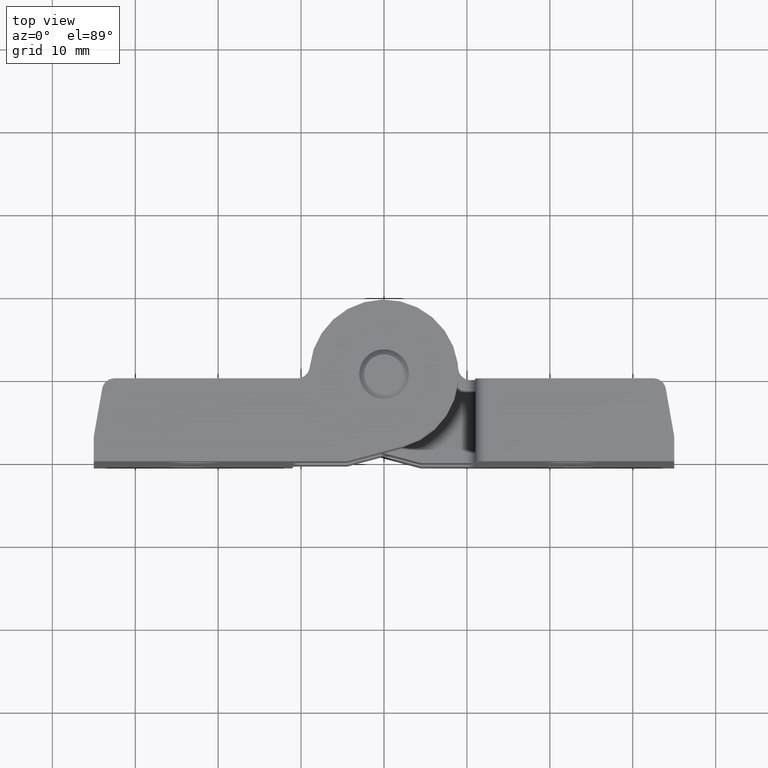
[diagram: clean part render]
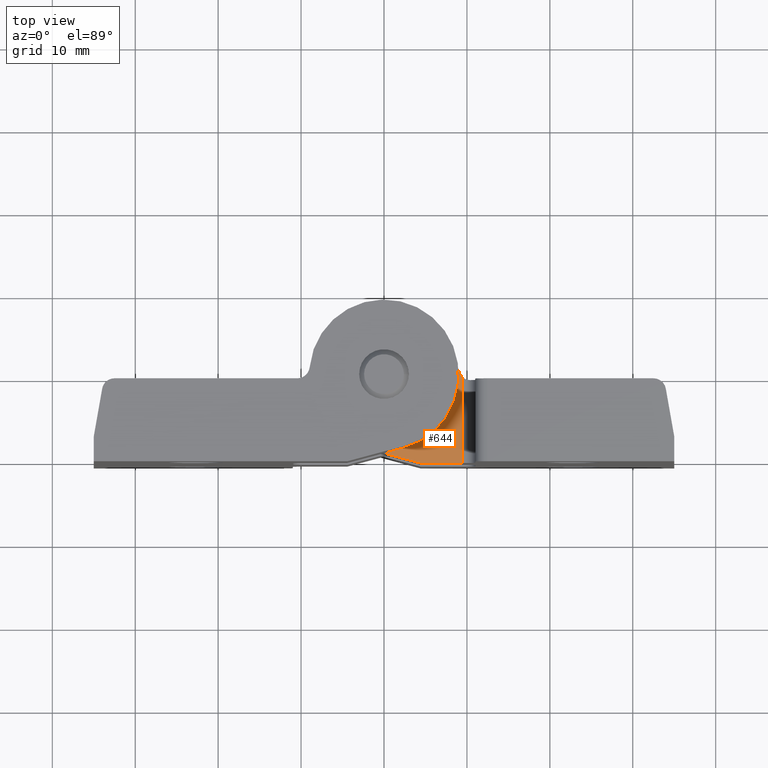
[diagram: same view with one face highlighted and labeled with its STEP entity id]
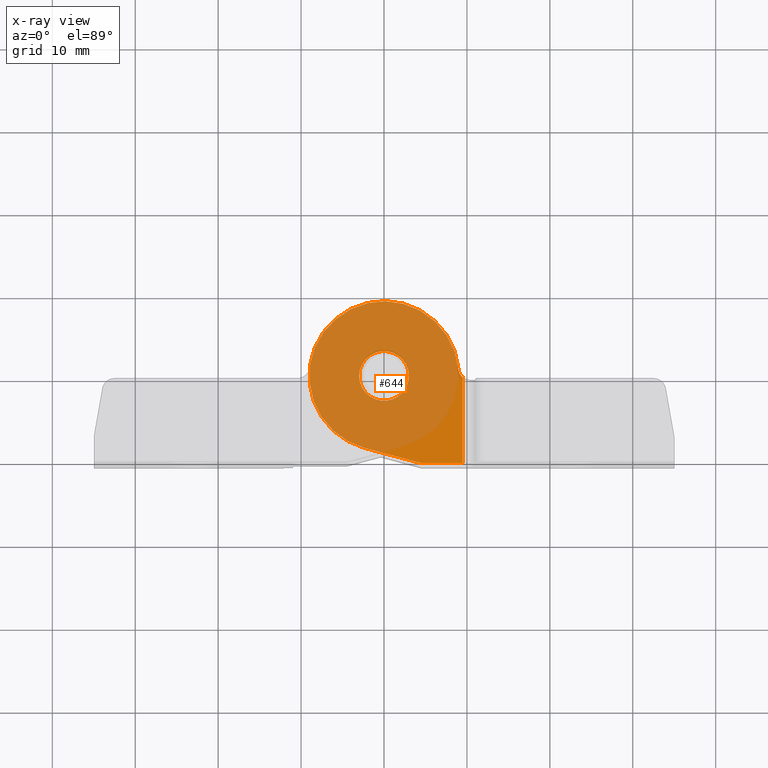
[diagram: x-ray of the same camera — body ghosted, the highlighted face saturated]
A machine part, top view. The second image highlights one B-rep face of the part: STEP entity #644.
The next image is the same camera in x-ray: the body ghosted, the highlighted face saturated — about 86% of this face is hidden behind the body in this view.
In plain terms, the highlighted planar face has unit normal (-0, 0, -1).
Its self-contained STEP definition (entity closure, byte-faithful):
#50=LINE('',#1134,#98);
#54=LINE('',#1154,#102);
#55=LINE('',#1155,#103);
#98=VECTOR('',#899,10.);
#102=VECTOR('',#919,10.);
#103=VECTOR('',#920,10.);
#152=FACE_BOUND('',#212,.T.);
#172=FACE_OUTER_BOUND('',#211,.T.);
#211=EDGE_LOOP('',(#498,#499,#500,#501,#502));
#212=EDGE_LOOP('',(#503));
#252=CIRCLE('',#749,3.);
#266=CIRCLE('',#771,1.49997000000001);
#267=CIRCLE('',#772,9.);
#292=VERTEX_POINT('',#1058);
#309=VERTEX_POINT('',#1121);
#311=VERTEX_POINT('',#1133);
#317=VERTEX_POINT('',#1149);
#318=VERTEX_POINT('',#1151);
#319=VERTEX_POINT('',#1153);
#358=EDGE_CURVE('',#292,#292,#252,.T.);
#381=EDGE_CURVE('',#311,#309,#50,.T.);
#389=EDGE_CURVE('',#317,#309,#266,.T.);
#390=EDGE_CURVE('',#318,#317,#267,.T.);
#391=EDGE_CURVE('',#319,#318,#54,.T.);
#392=EDGE_CURVE('',#311,#319,#55,.T.);
#498=ORIENTED_EDGE('',*,*,#389,.F.);
#499=ORIENTED_EDGE('',*,*,#390,.F.);
#500=ORIENTED_EDGE('',*,*,#391,.F.);
#501=ORIENTED_EDGE('',*,*,#392,.F.);
#502=ORIENTED_EDGE('',*,*,#381,.T.);
#503=ORIENTED_EDGE('',*,*,#358,.T.);
#618=PLANE('',#770);
#644=ADVANCED_FACE('',(#172,#152),#618,.F.);
#749=AXIS2_PLACEMENT_3D('',#1059,#857,#858);
#770=AXIS2_PLACEMENT_3D('',#1148,#913,#914);
#771=AXIS2_PLACEMENT_3D('',#1150,#915,#916);
#772=AXIS2_PLACEMENT_3D('',#1152,#917,#918);
#857=DIRECTION('center_axis',(0.,0.,1.));
#858=DIRECTION('ref_axis',(-1.,0.,0.));
#899=DIRECTION('',(0.,1.,0.));
#913=DIRECTION('center_axis',(0.,0.,1.));
#914=DIRECTION('ref_axis',(1.,0.,0.));
#915=DIRECTION('center_axis',(0.,0.,-1.));
#916=DIRECTION('ref_axis',(-1.5326546052861E-5,0.999999999882549,0.));
#917=DIRECTION('center_axis',(0.,0.,1.));
#918=DIRECTION('ref_axis',(0.258809877658537,-0.965928282651654,0.));
#919=DIRECTION('',(0.965927000607596,0.25881466244634,0.));
#920=DIRECTION('',(1.,0.,0.));
#1058=CARTESIAN_POINT('',(3.,3.67394039744206E-16,-12.4));
#1059=CARTESIAN_POINT('Origin',(0.,0.,-12.4));
#1121=CARTESIAN_POINT('',(-9.5,-0.15898702243182,-12.4));
#1133=CARTESIAN_POINT('',(-9.5,-10.5,-12.4));
#1134=CARTESIAN_POINT('',(-9.5,0.,-12.4));
#1148=CARTESIAN_POINT('Origin',(-9.5,0.,-12.4));
#1149=CARTESIAN_POINT('',(-8.9590700768692,0.85712609613031,-12.4));
#1150=CARTESIAN_POINT('Origin',(-10.4522229893593,0.999969999823835,-12.4));
#1151=CARTESIAN_POINT('',(2.3293174191724,-8.693288729848,-12.4));
#1152=CARTESIAN_POINT('Origin',(2.85202455618805E-5,6.58140168857679E-5,
-12.4));
#1153=CARTESIAN_POINT('',(-4.4135432118542,-10.5,-12.4));
#1154=CARTESIAN_POINT('',(-5.47393400622916,-10.7841257003218,-12.4));
#1155=CARTESIAN_POINT('',(-22.25,-10.5,-12.4));